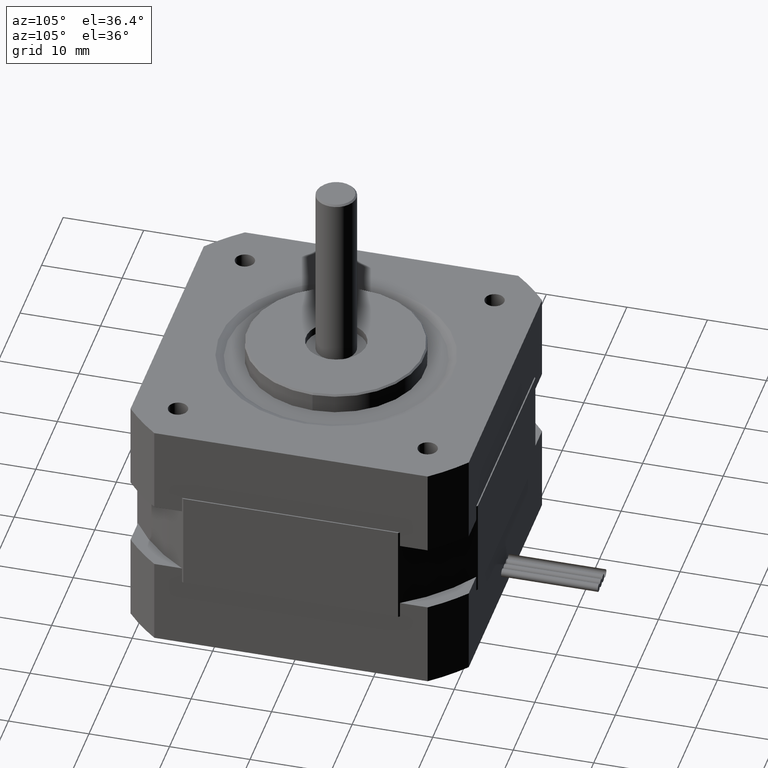
[diagram: clean part render]
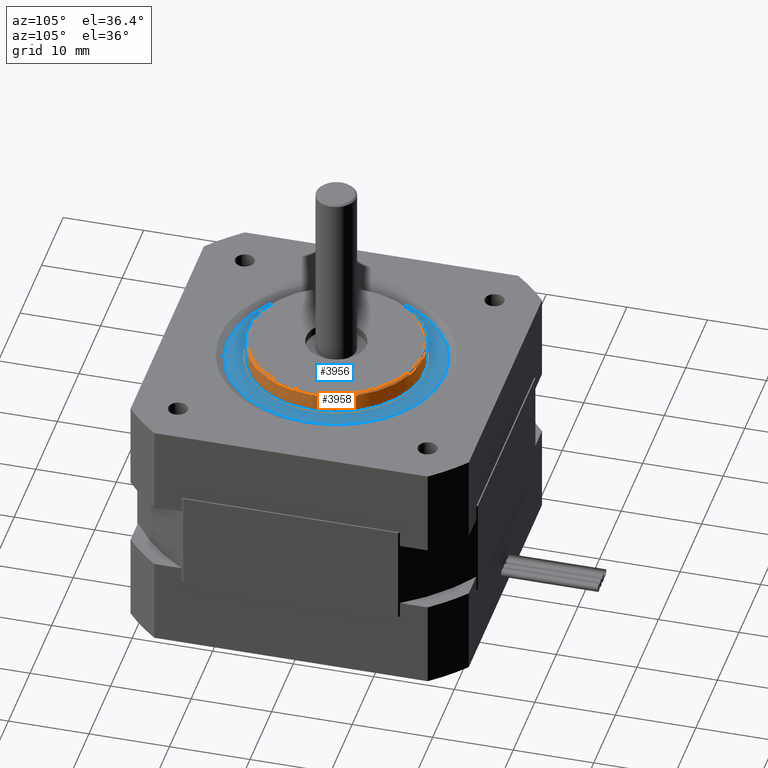
[diagram: same view with the hole feature highlighted: cylindrical wall and planar end face, labeled with their STEP entity ids]
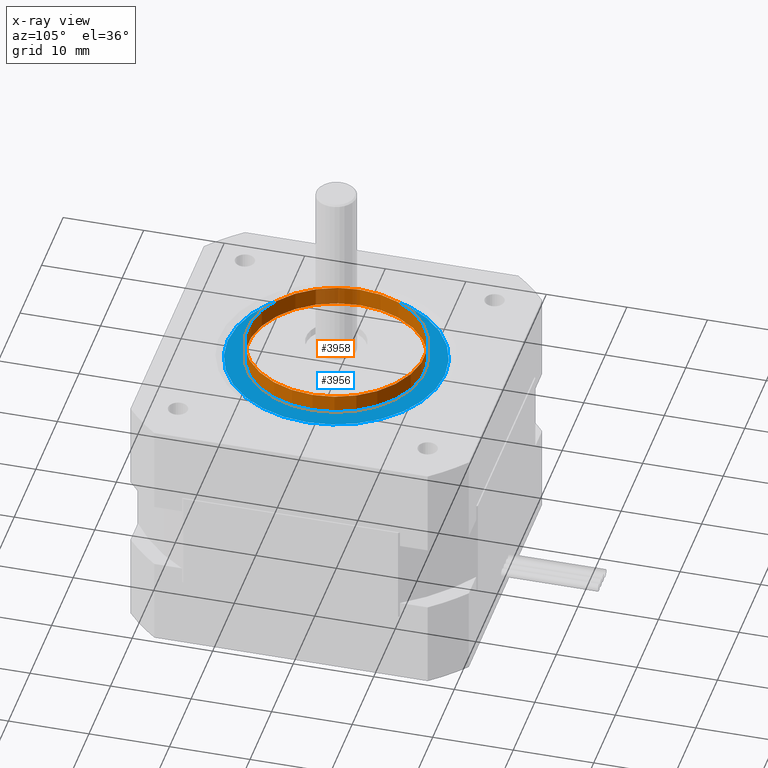
[diagram: x-ray of the same camera — body ghosted, the hole faces saturated]
A machine part, auxiliary view. The highlighted faces form one hole feature of diameter 22 mm: the cylindrical wall (entity #3958, orange) and its adjacent planar end face (entity #3956, blue) — they share a circular edge in the B-rep.
The next image is the same camera in x-ray (body ghosted, the hole faces saturated) — the bore reads through the body.
Wall:
#750=FACE_BOUND('',#1157,.T.);
#821=CYLINDRICAL_SURFACE('',#4251,11.);
#888=FACE_OUTER_BOUND('',#1156,.T.);
#1156=EDGE_LOOP('',(#2723));
#1157=EDGE_LOOP('',(#2724));
#1474=CIRCLE('',#4247,11.);
#1476=CIRCLE('',#4250,11.);
#1730=VERTEX_POINT('',#6086);
#1732=VERTEX_POINT('',#6091);
#2130=EDGE_CURVE('',#1730,#1730,#1474,.T.);
#2132=EDGE_CURVE('',#1732,#1732,#1476,.T.);
#2723=ORIENTED_EDGE('',*,*,#2130,.T.);
#2724=ORIENTED_EDGE('',*,*,#2132,.F.);
#3958=ADVANCED_FACE('',(#888,#750),#821,.T.);
#4247=AXIS2_PLACEMENT_3D('',#6087,#4829,#4830);
#4250=AXIS2_PLACEMENT_3D('',#6092,#4835,#4836);
#4251=AXIS2_PLACEMENT_3D('',#6093,#4837,#4838);
#4829=DIRECTION('center_axis',(-8.74300631892311E-16,-2.59037577520082E-32,
1.));
#4830=DIRECTION('ref_axis',(-1.,-7.54604712049907E-17,-8.7430063189231E-16));
#4835=DIRECTION('center_axis',(-8.74300631892311E-16,-2.59037577520082E-32,
1.));
#4836=DIRECTION('ref_axis',(-1.,-7.54604712049907E-17,-8.7430063189231E-16));
#4837=DIRECTION('center_axis',(-8.74300631892311E-16,-2.59037577520082E-32,
1.));
#4838=DIRECTION('ref_axis',(-1.,-7.54604712049907E-17,-8.7430063189231E-16));
#6086=CARTESIAN_POINT('',(11.,6.90938593729828E-15,5.4999999999999));
#6087=CARTESIAN_POINT('Origin',(-9.42678372192386E-15,4.73220975404338E-15,
5.49999999999989));
#6091=CARTESIAN_POINT('',(11.,6.90934193729828E-15,7.7999999999999));
#6092=CARTESIAN_POINT('Origin',(-1.14376751752762E-14,4.73220975404338E-15,
7.79999999999989));
#6093=CARTESIAN_POINT('Origin',(-9.86393403787002E-15,4.73220975404338E-15,
5.99999999999989));
End face:
#618=PLANE('',#4246);
#748=FACE_BOUND('',#1153,.T.);
#886=FACE_OUTER_BOUND('',#1152,.T.);
#1152=EDGE_LOOP('',(#2719));
#1153=EDGE_LOOP('',(#2720));
#1468=CIRCLE('',#4239,13.5);
#1474=CIRCLE('',#4247,11.);
#1724=VERTEX_POINT('',#6070);
#1730=VERTEX_POINT('',#6086);
#2122=EDGE_CURVE('',#1724,#1724,#1468,.T.);
#2130=EDGE_CURVE('',#1730,#1730,#1474,.T.);
#2719=ORIENTED_EDGE('',*,*,#2122,.T.);
#2720=ORIENTED_EDGE('',*,*,#2130,.F.);
#3956=ADVANCED_FACE('',(#886,#748),#618,.F.);
#4239=AXIS2_PLACEMENT_3D('',#6071,#4811,#4812);
#4246=AXIS2_PLACEMENT_3D('',#6085,#4827,#4828);
#4247=AXIS2_PLACEMENT_3D('',#6087,#4829,#4830);
#4811=DIRECTION('center_axis',(-8.74300631892311E-16,-2.59037577520082E-32,
1.));
#4812=DIRECTION('ref_axis',(-1.,-7.54604712049907E-17,-8.74300631892311E-16));
#4827=DIRECTION('center_axis',(8.74300631892311E-16,2.59037577520082E-32,
-1.));
#4828=DIRECTION('ref_axis',(-1.,-7.54604712049907E-17,-8.88178419700125E-16));
#4829=DIRECTION('center_axis',(-8.74300631892311E-16,-2.59037577520082E-32,
1.));
#4830=DIRECTION('ref_axis',(-1.,-7.54604712049907E-17,-8.7430063189231E-16));
#6070=CARTESIAN_POINT('',(13.5,7.40419911531075E-15,5.4999999999999));
#6071=CARTESIAN_POINT('Origin',(-9.42678372192386E-15,4.73220975404338E-15,
5.49999999999989));
#6085=CARTESIAN_POINT('Origin',(-9.42678372192386E-15,4.73220975404338E-15,
5.49999999999989));
#6086=CARTESIAN_POINT('',(11.,6.90938593729828E-15,5.4999999999999));
#6087=CARTESIAN_POINT('Origin',(-9.42678372192386E-15,4.73220975404338E-15,
5.49999999999989));